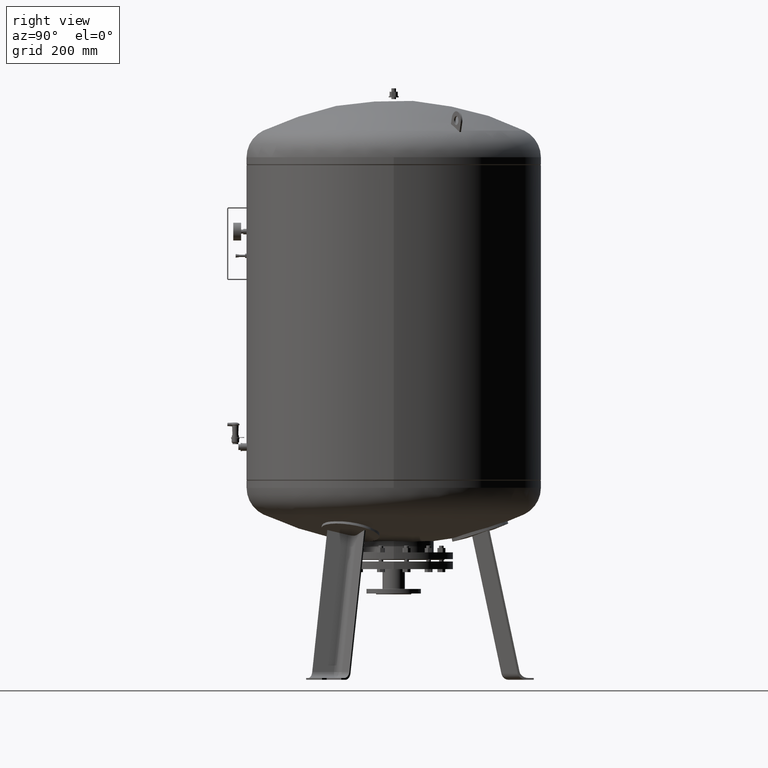
[diagram: clean part render]
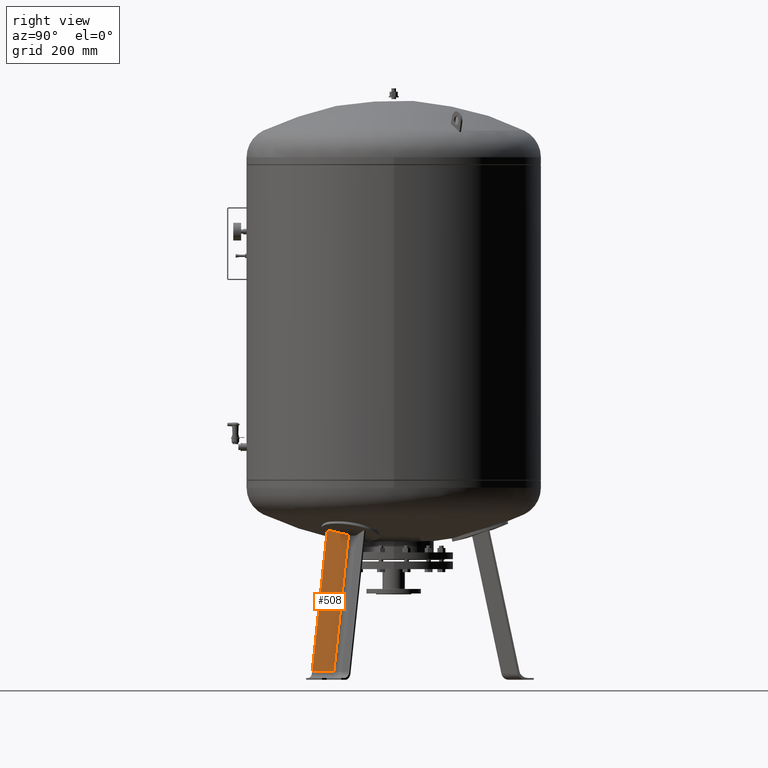
[diagram: same view with one face highlighted and labeled with its STEP entity id]
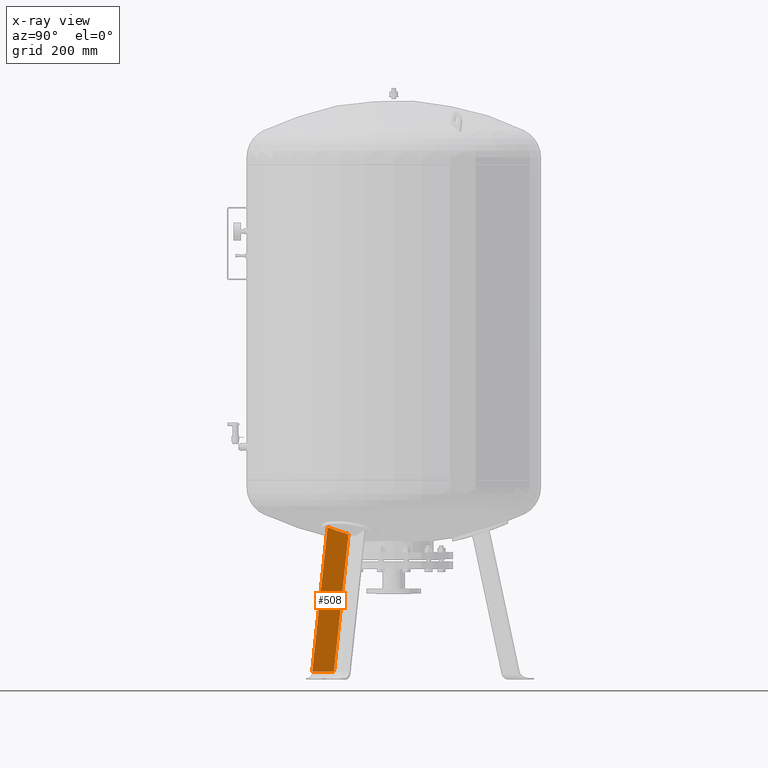
[diagram: x-ray of the same camera — body ghosted, the highlighted face saturated]
A machine part, right view. The second image highlights one B-rep face of the part: STEP entity #508.
The next image is the same camera in x-ray: the body ghosted, the highlighted face saturated — about 0% of this face is hidden behind the body in this view.
In plain terms, the highlighted planar face has unit normal (0.9697, 0.1854, 0.1588).
Its self-contained STEP definition (entity closure, byte-faithful):
#171=CARTESIAN_POINT('',(319.830394192792940,-203.286932639186120,27.029948423057292));
#172=VERTEX_POINT('',#171);
#244=CARTESIAN_POINT('',(233.833770814888480,-153.636758982554060,494.201352274706380));
#245=VERTEX_POINT('',#244);
#335=CARTESIAN_POINT('',(243.545459295347570,-224.716959764807510,517.895129107029220));
#336=VERTEX_POINT('',#335);
#344=CARTESIAN_POINT('',(233.833770814888480,-153.636758982554060,494.201352274706380));
#345=CARTESIAN_POINT('',(234.145636525133370,-155.785837446084660,494.806356446810070));
#346=CARTESIAN_POINT('',(234.455869085461960,-157.936627893456380,495.423332669959050));
#347=CARTESIAN_POINT('',(235.806048865956340,-167.351452042096270,498.171859028429080));
#348=CARTESIAN_POINT('',(236.830002651362290,-174.632430311933630,500.420860589925100));
#349=CARTESIAN_POINT('',(239.805336106046810,-196.170965889859760,507.401880690415790));
#350=CARTESIAN_POINT('',(241.709926838352800,-210.458800609479230,512.454975054419260));
#351=CARTESIAN_POINT('',(243.545459295347570,-224.716959764807510,517.895129107029220));
#352=B_SPLINE_CURVE_WITH_KNOTS('',3,(#344,#345,#346,#347,#348,#349,#350,#351),.UNSPECIFIED.,.F.,.U.,(4,2,2,4),(5.937335443723129,6.588195328792665,8.784260438390220,13.073486937020286),.UNSPECIFIED.);
#353=EDGE_CURVE('',#245,#336,#352,.T.);
#480=CARTESIAN_POINT('',(333.269673407839720,-192.413335654755090,-67.735293817669458));
#481=DIRECTION('',(0.969740897595359,0.185430570007244,0.158802063077709));
#482=DIRECTION('',(-0.180056805991956,0.103955845408880,0.978147600733806));
#483=AXIS2_PLACEMENT_3D('',#480,#481,#482);
#484=PLANE('',#483);
#485=CARTESIAN_POINT('',(333.903618473282390,-276.885267289667350,27.029948423057292));
#486=VERTEX_POINT('',#485);
#487=CARTESIAN_POINT('',(333.903618473282390,-276.885267289667350,27.029948423057292));
#488=DIRECTION('',(-0.180056805991956,0.103955845408880,0.978147600733805));
#489=VECTOR('',#488,501.831400818981990);
#490=LINE('',#487,#489);
#491=EDGE_CURVE('',#486,#336,#490,.T.);
#492=ORIENTED_EDGE('',*,*,#491,.F.);
#493=CARTESIAN_POINT('',(319.830394192792940,-203.286932639186120,27.029948423057292));
#494=DIRECTION('',(0.187813845079449,-0.982204642422582,0.0));
#495=VECTOR('',#494,74.931772333057651);
#496=LINE('',#493,#495);
#497=EDGE_CURVE('',#172,#486,#496,.T.);
#498=ORIENTED_EDGE('',*,*,#497,.F.);
#499=CARTESIAN_POINT('',(233.833770814888480,-153.636758982554060,494.201352274706380));
#500=DIRECTION('',(0.180056805991956,-0.103955845408880,-0.978147600733806));
#501=VECTOR('',#500,477.608290917625770);
#502=LINE('',#499,#501);
#503=EDGE_CURVE('',#245,#172,#502,.T.);
#504=ORIENTED_EDGE('',*,*,#503,.F.);
#505=ORIENTED_EDGE('',*,*,#353,.T.);
#506=EDGE_LOOP('',(#492,#498,#504,#505));
#507=FACE_OUTER_BOUND('',#506,.T.);
#508=ADVANCED_FACE('',(#507),#484,.T.);